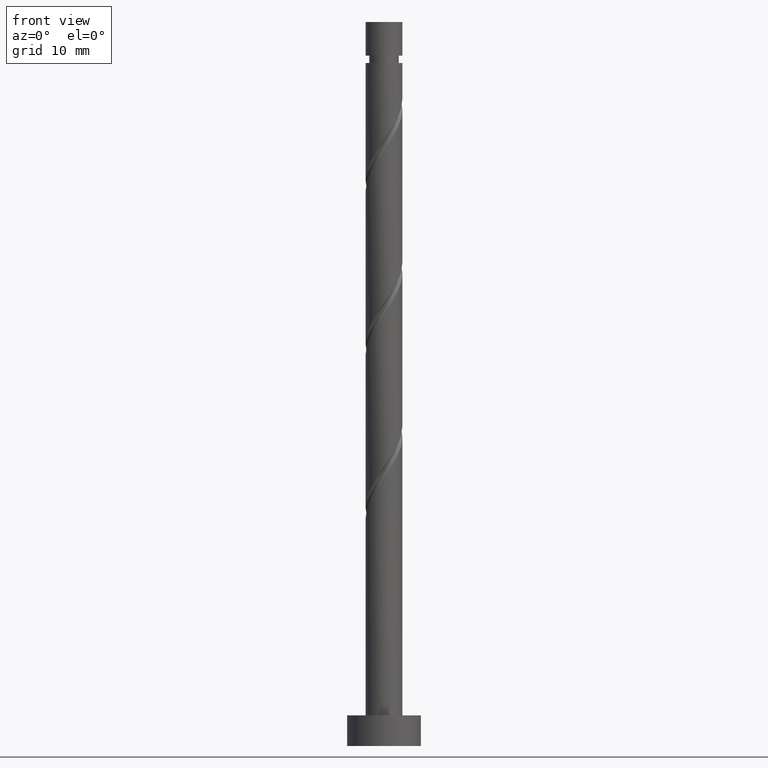
[diagram: clean part render]
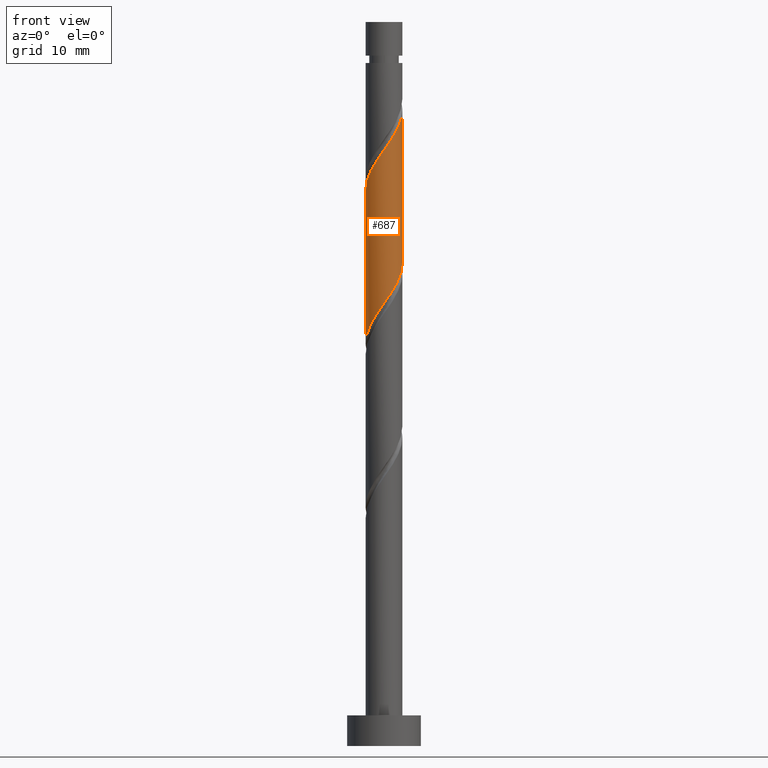
[diagram: same view with one face highlighted and labeled with its STEP entity id]
A machine part, front view. The second image highlights one B-rep face of the part: STEP entity #687.
In plain terms, the highlighted cylindrical surface (edge-blend (fillet) strip) has radius 3 mm, axis along (-0, -0, -1).
Its self-contained STEP definition (entity closure, byte-faithful):
#3 = CARTESIAN_POINT ( 'NONE',  ( -3.000000000000000888, 2.243523105524484873E-15, 65.50417177779928579 ) ) ;
#7 = CARTESIAN_POINT ( 'NONE',  ( 1.401103789956903656, -2.652717129617937264, 99.20017184395295828 ) ) ;
#49 = LINE ( 'NONE', #1316, #270 ) ;
#88 = AXIS2_PLACEMENT_3D ( 'NONE', #1298, #138, #1178 ) ;
#112 = ORIENTED_EDGE ( 'NONE', *, *, #1236, .T. ) ;
#125 = CARTESIAN_POINT ( 'NONE',  ( 2.824796231958411674, -1.098442546668023212, 102.2304748742559752 ) ) ;
#128 =( BOUNDED_CURVE ( )  B_SPLINE_CURVE ( 2, ( #1559, #397, #909, #1051, #898, #1292, #1412, #936, #134, #1431, #775, #794, #529, #1283, #667, #246, #7, #648, #675, #1275, #1183, #125, #1653, #519, #1043 ),
 .UNSPECIFIED., .F., .T. ) 
 B_SPLINE_CURVE_WITH_KNOTS ( ( 3, 2, 2, 2, 2, 2, 2, 2, 2, 2, 2, 2, 3 ),
 ( 0.5545252162417514397, 0.5568181818181818787, 0.5681818181818181213, 0.5795454545454545858, 0.5909090909090908283, 0.6022727272727272929, 0.6136363636363636465, 0.6250000000000000000, 0.6363636363636363535, 0.6477272727272727071, 0.6590909090909091717, 0.6704545454545454142, 0.6795252162417512176 ),
 .UNSPECIFIED. ) 
 CURVE ( )  GEOMETRIC_REPRESENTATION_ITEM ( )  RATIONAL_B_SPLINE_CURVE ( ( 0.9061101570135570160, 0.9072237824201391243, 0.9090909090909164991, 0.8998376744372190705, 0.9090909090909164991, 0.8998376744372190705, 0.9090909090909164991, 0.8998376744372190705, 0.9090909090909164991, 0.8998376744372190705, 0.9090909090909164991, 0.8998376744372190705, 0.9090909090909164991, 0.8998376744372190705, 0.9090909090909164991, 0.8998376744372190705, 0.9090909090909164991, 0.8998376744372190705, 0.9090909090909164991, 0.8998376744372190705, 0.9090909090909164991, 0.8998376744372190705, 0.9090909090909164991, 0.9017048011079966674, 0.9061101570135567940 ) ) 
 REPRESENTATION_ITEM ( '' )  );
#134 = CARTESIAN_POINT ( 'NONE',  ( -1.830956826603535204, -2.376467357047839180, 94.35168699546808568 ) ) ;
#138 = DIRECTION ( 'NONE',  ( -0.000000000000000000, -0.000000000000000000, -1.000000000000000000 ) ) ;
#141 =( BOUNDED_CURVE ( )  B_SPLINE_CURVE ( 2, ( #1079, #1598, #1589, #552, #965, #1336, #828, #579, #282, #1604, #714, #1071, #419, #427, #170, #409, #1094, #1611, #1214, #1582, #436, #837, #1342, #291, #1350 ),
 .UNSPECIFIED., .F., .T. ) 
 B_SPLINE_CURVE_WITH_KNOTS ( ( 3, 2, 2, 2, 2, 2, 2, 2, 2, 2, 2, 2, 3 ),
 ( 0.5545252162417513286, 0.5568181818181817677, 0.5681818181818182323, 0.5795454545454545858, 0.5909090909090909394, 0.6022727272727272929, 0.6136363636363636465, 0.6250000000000000000, 0.6363636363636363535, 0.6477272727272727071, 0.6590909090909090606, 0.6704545454545454142, 0.6795252162417514397 ),
 .UNSPECIFIED. ) 
 CURVE ( )  GEOMETRIC_REPRESENTATION_ITEM ( )  RATIONAL_B_SPLINE_CURVE ( ( 0.9061101570135511318, 0.9072237824201333511, 0.9090909090909108370, 0.8998376744372130753, 0.9090909090909108370, 0.8998376744372130753, 0.9090909090909108370, 0.8998376744372130753, 0.9090909090909108370, 0.8998376744372130753, 0.9090909090909108370, 0.8998376744372130753, 0.9090909090909108370, 0.8998376744372130753, 0.9090909090909108370, 0.8998376744372130753, 0.9090909090909108370, 0.8998376744372130753, 0.9090909090909108370, 0.8998376744372130753, 0.9090909090909108370, 0.8998376744372130753, 0.9090909090909108370, 0.9017048011079904501, 0.9061101570135513539 ) ) 
 REPRESENTATION_ITEM ( '' )  );
#165 = VERTEX_POINT ( 'NONE', #3 ) ;
#170 = CARTESIAN_POINT ( 'NONE',  ( -0.5969924622639721790, -2.939999999999999503, 71.32138396516506873 ) ) ;
#177 = DIRECTION ( 'NONE',  ( -0.000000000000000000, -0.000000000000000000, -1.000000000000000000 ) ) ;
#236 = EDGE_LOOP ( 'NONE', ( #1600, #303, #112, #1344 ) ) ;
#246 = CARTESIAN_POINT ( 'NONE',  ( 1.019700646609194017, -2.854165442247832196, 98.59411123789233500 ) ) ;
#270 = VECTOR ( 'NONE', #177, 1000.000000000000000 ) ;
#282 = CARTESIAN_POINT ( 'NONE',  ( 1.830956826603531873, -2.376467357047836071, 74.95774760152872318 ) ) ;
#291 = CARTESIAN_POINT ( 'NONE',  ( -3.000000000000001776, -0.3435867821553637014, 65.99013173077059946 ) ) ;
#303 = ORIENTED_EDGE ( 'NONE', *, *, #1357, .F. ) ;
#368 = CYLINDRICAL_SURFACE ( 'NONE', #88, 3.000000000000000444 ) ;
#397 = CARTESIAN_POINT ( 'NONE',  ( -3.000000000000005329, -0.08632657957146862293, 90.59402749058236282 ) ) ;
#409 = CARTESIAN_POINT ( 'NONE',  ( -1.019700646609193795, -2.854165442247829532, 70.71532335910445966 ) ) ;
#412 = DIRECTION ( 'NONE',  ( -0.000000000000000000, -0.000000000000000000, -1.000000000000000000 ) ) ;
#419 = CARTESIAN_POINT ( 'NONE',  ( 0.2554836442707034139, -2.989101555235311292, 72.53350517728627267 ) ) ;
#427 = CARTESIAN_POINT ( 'NONE',  ( -0.1742842779187510904, -3.025834557752173470, 71.92744457122570623 ) ) ;
#436 = CARTESIAN_POINT ( 'NONE',  ( -2.612850670599507374, -1.474113758550440689, 67.68502032880142849 ) ) ;
#519 = CARTESIAN_POINT ( 'NONE',  ( 3.000000000000003553, -0.3435867821553760804, 103.3193028662261810 ) ) ;
#529 = CARTESIAN_POINT ( 'NONE',  ( -0.2554836442707050792, -2.989101555235317065, 96.77592941971053619 ) ) ;
#552 = CARTESIAN_POINT ( 'NONE',  ( 2.970232686021826218, -0.6031314709949331387, 77.98805063183176856 ) ) ;
#579 = CARTESIAN_POINT ( 'NONE',  ( 2.172641248934613412, -2.113215508140329657, 75.56380820758930383 ) ) ;
#648 = CARTESIAN_POINT ( 'NONE',  ( 1.782506933304613961, -2.451268816988041443, 99.80623245001349630 ) ) ;
#667 = CARTESIAN_POINT ( 'NONE',  ( 0.5969924622639720679, -2.940000000000005276, 97.98805063183175434 ) ) ;
#675 = CARTESIAN_POINT ( 'NONE',  ( 2.091706021272611959, -2.150526893710452470, 100.4122930560741622 ) ) ;
#687 = ADVANCED_FACE ( 'NONE', ( #787 ), #368, .T. ) ;
#694 = CARTESIAN_POINT ( 'NONE',  ( 3.000000000000000888, -2.871709575071340591E-15, 78.83750511113260018 ) ) ;
#714 = CARTESIAN_POINT ( 'NONE',  ( 1.087261985366304584, -2.796043879336897575, 73.74562638940747661 ) ) ;
#775 = CARTESIAN_POINT ( 'NONE',  ( -1.087261985366307693, -2.796043879336900240, 95.56380820758931804 ) ) ;
#787 = FACE_OUTER_BOUND ( 'NONE', #236, .T. ) ;
#794 = CARTESIAN_POINT ( 'NONE',  ( -0.6852515664601603884, -2.952368552718455774, 96.16986881364989870 ) ) ;
#828 = CARTESIAN_POINT ( 'NONE',  ( 2.426318434868868668, -1.764363582886330217, 76.16986881364994133 ) ) ;
#837 = CARTESIAN_POINT ( 'NONE',  ( -2.824796231958407677, -1.098442546668021880, 67.07895972274084784 ) ) ;
#898 = CARTESIAN_POINT ( 'NONE',  ( -2.825114153412478846, -1.009321564313632402, 91.92744457122569202 ) ) ;
#909 = CARTESIAN_POINT ( 'NONE',  ( -2.995035924847414321, -0.1725103152667145368, 90.71532335910444544 ) ) ;
#918 = EDGE_CURVE ( 'NONE', #1241, #1081, #49, .T. ) ;
#936 = CARTESIAN_POINT ( 'NONE',  ( -2.172641248934616520, -2.113215508140332766, 93.74562638940750503 ) ) ;
#965 = CARTESIAN_POINT ( 'NONE',  ( 2.825114153412475737, -1.009321564313631292, 77.38199002577111685 ) ) ;
#1043 = CARTESIAN_POINT ( 'NONE',  ( 3.000000000000005773, 1.376027504721675134E-15, 103.8052628191975089 ) ) ;
#1049 = VERTEX_POINT ( 'NONE', #1219 ) ;
#1051 = CARTESIAN_POINT ( 'NONE',  ( -2.970232686021831547, -0.6031314709949324726, 91.32138396516502610 ) ) ;
#1071 = CARTESIAN_POINT ( 'NONE',  ( 0.6852515664601597223, -2.952368552718452221, 73.13956578334689596 ) ) ;
#1073 = EDGE_CURVE ( 'NONE', #1081, #165, #141, .T. ) ;
#1075 = LINE ( 'NONE', #1302, #1465 ) ;
#1079 = CARTESIAN_POINT ( 'NONE',  ( 3.000000000000000888, -2.871709575071340591E-15, 78.83750511113260018 ) ) ;
#1081 = VERTEX_POINT ( 'NONE', #694 ) ;
#1094 = CARTESIAN_POINT ( 'NONE',  ( -1.401103789956902768, -2.652717129617932823, 70.10926275304383637 ) ) ;
#1178 = DIRECTION ( 'NONE',  ( -1.000000000000000000, 0.000000000000000000, 0.000000000000000000 ) ) ;
#1183 = CARTESIAN_POINT ( 'NONE',  ( 2.612850670599510483, -1.474113758550444242, 101.6244142681953804 ) ) ;
#1214 = CARTESIAN_POINT ( 'NONE',  ( -2.091706021272610183, -2.150526893710449361, 68.89714154092263243 ) ) ;
#1219 = CARTESIAN_POINT ( 'NONE',  ( -3.000000000000005773, -1.465768428942654465E-15, 90.47192948586418026 ) ) ;
#1236 = EDGE_CURVE ( 'NONE', #1049, #165, #1075, .T. ) ;
#1241 = VERTEX_POINT ( 'NONE', #1586 ) ;
#1275 = CARTESIAN_POINT ( 'NONE',  ( 2.400905109240610180, -1.849784970432863496, 101.0183536621347713 ) ) ;
#1283 = CARTESIAN_POINT ( 'NONE',  ( 0.1742842779187500080, -3.025834557752176579, 97.38199002577111685 ) ) ;
#1292 = CARTESIAN_POINT ( 'NONE',  ( -2.679995620803127476, -1.415511657632332110, 92.53350517728627267 ) ) ;
#1298 = CARTESIAN_POINT ( 'NONE',  ( 0.000000000000000000, 0.000000000000000000, 118.0000000000000142 ) ) ;
#1302 = CARTESIAN_POINT ( 'NONE',  ( -3.000000000000000444, 0.000000000000000000, 118.0000000000000142 ) ) ;
#1316 = CARTESIAN_POINT ( 'NONE',  ( 3.000000000000000444, 3.673940397442060361E-16, 118.0000000000000142 ) ) ;
#1336 = CARTESIAN_POINT ( 'NONE',  ( 2.679995620803124368, -1.415511657632331222, 76.77592941971055041 ) ) ;
#1342 = CARTESIAN_POINT ( 'NONE',  ( -2.922317697815699944, -0.6782766935647622786, 66.47289911668022455 ) ) ;
#1344 = ORIENTED_EDGE ( 'NONE', *, *, #1073, .F. ) ;
#1350 = CARTESIAN_POINT ( 'NONE',  ( -3.000000000000000888, 2.243523105524484873E-15, 65.50417177779928579 ) ) ;
#1357 = EDGE_CURVE ( 'NONE', #1049, #1241, #128, .T. ) ;
#1412 = CARTESIAN_POINT ( 'NONE',  ( -2.426318434868872220, -1.764363582886332660, 93.13956578334688174 ) ) ;
#1431 = CARTESIAN_POINT ( 'NONE',  ( -1.489272404272454553, -2.639719205955344261, 94.95774760152869476 ) ) ;
#1465 = VECTOR ( 'NONE', #412, 1000.000000000000000 ) ;
#1559 = CARTESIAN_POINT ( 'NONE',  ( -3.000000000000005773, -1.465768428942654663E-15, 90.47192948586418026 ) ) ;
#1582 = CARTESIAN_POINT ( 'NONE',  ( -2.400905109240607516, -1.849784970432859721, 68.29108093486205178 ) ) ;
#1586 = CARTESIAN_POINT ( 'NONE',  ( 3.000000000000005773, 1.376027504721675331E-15, 103.8052628191975089 ) ) ;
#1589 = CARTESIAN_POINT ( 'NONE',  ( 2.995035924847409881, -0.1725103152667154527, 78.59411123789232079 ) ) ;
#1598 = CARTESIAN_POINT ( 'NONE',  ( 3.000000000000000000, -0.08632657957146896988, 78.71540710641438920 ) ) ;
#1600 = ORIENTED_EDGE ( 'NONE', *, *, #918, .F. ) ;
#1604 = CARTESIAN_POINT ( 'NONE',  ( 1.489272404272451222, -2.639719205955342929, 74.35168699546809989 ) ) ;
#1611 = CARTESIAN_POINT ( 'NONE',  ( -1.782506933304611962, -2.451268816988039223, 69.50320214698324151 ) ) ;
#1653 = CARTESIAN_POINT ( 'NONE',  ( 2.922317697815704829, -0.6782766935647637219, 102.8365354803166127 ) ) ;